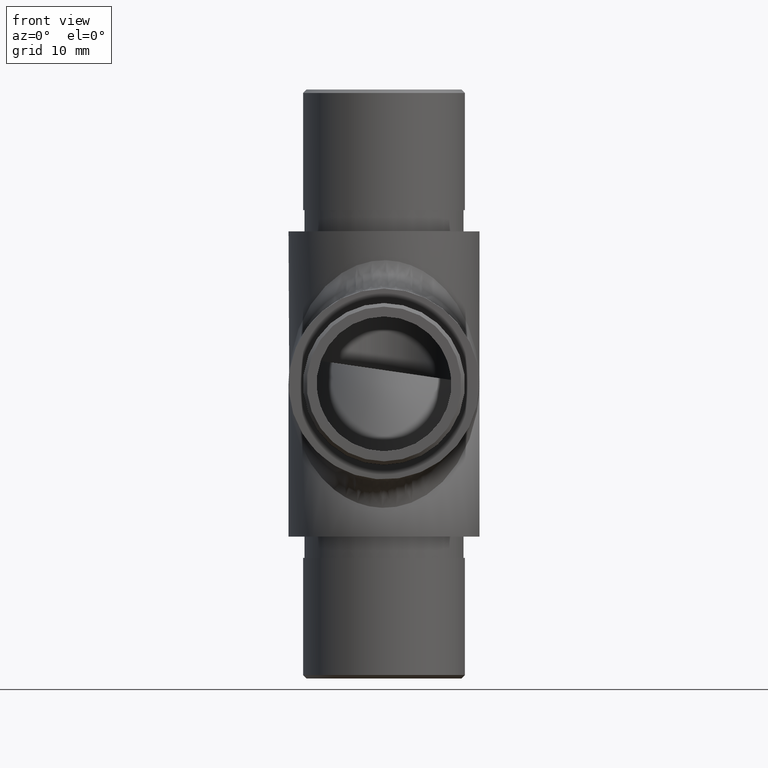
[diagram: clean part render]
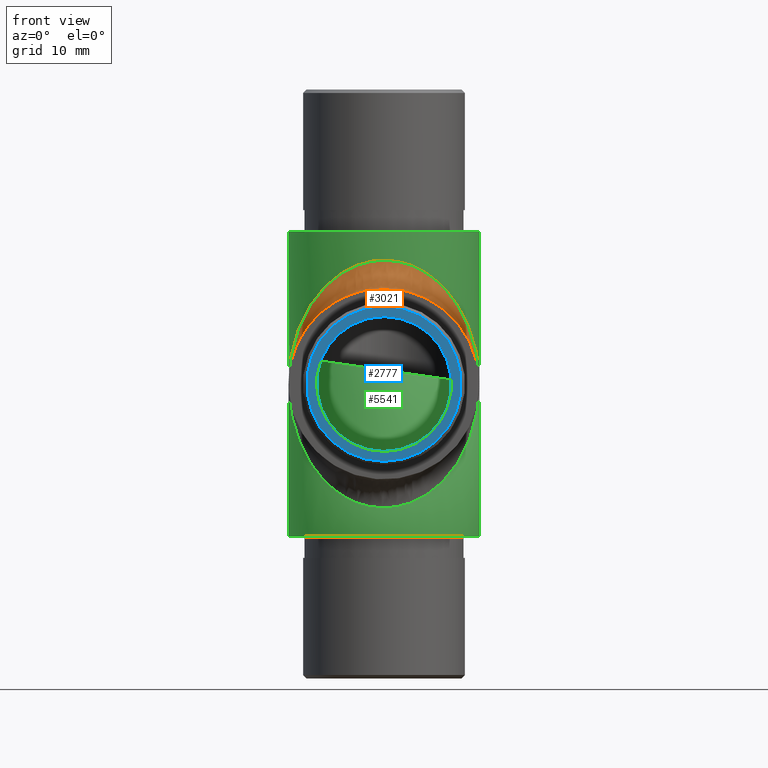
[diagram: same view with three faces highlighted in distinct colors, each labeled with its STEP entity id]
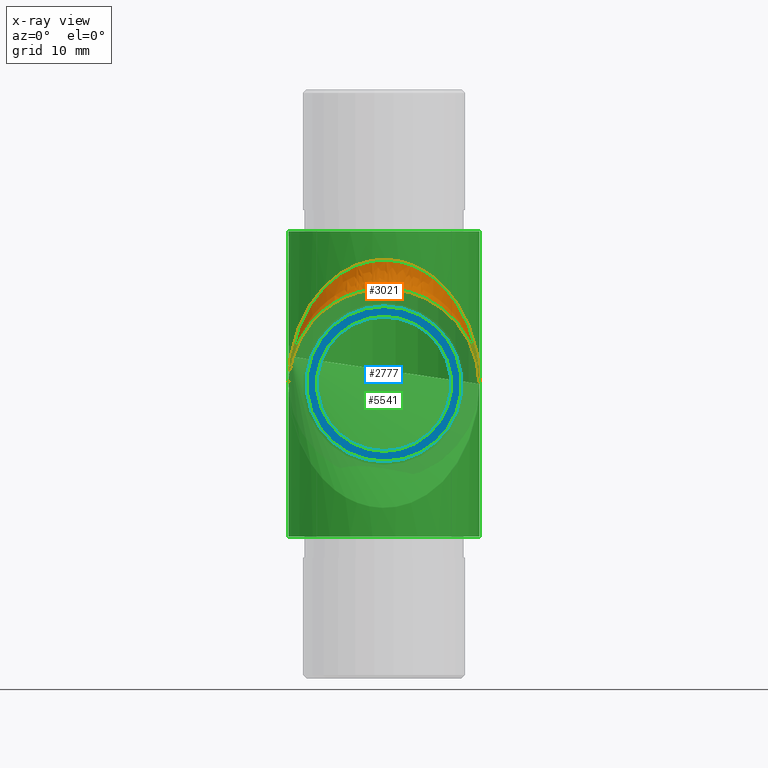
[diagram: x-ray of the same camera — body ghosted, the three highlighted faces saturated]
A machine part, front view with three faces highlighted in distinct colors.
The next image is the same camera in x-ray (body ghosted, the three faces saturated) — at least one of them is partly hidden behind the body in this view.
Their STEP definitions:

[orange] entity #3021 — the highlighted face is a freeform B-spline surface patch.
#104 = ORIENTED_EDGE ( 'NONE', *, *, #11539, .F. ) ;
#349 = CARTESIAN_POINT ( 'NONE',  ( 13.44999999999999800, 41.49999999999668900, -3.321756333069138900E-012 ) ) ;
#425 = FACE_OUTER_BOUND ( 'NONE', #6470, .T. ) ;
#560 = CARTESIAN_POINT ( 'NONE',  ( 12.76305610663450500, 35.87733676126273300, 4.333800605208373300 ) ) ;
#602 = CARTESIAN_POINT ( 'NONE',  ( 9.277602110787102100, 31.63565125913008900, 9.864348740862995500 ) ) ;
#638 = CARTESIAN_POINT ( 'NONE',  ( -7.054827041779410600, 29.92907421062020700, 11.57092578936716300 ) ) ;
#676 = CARTESIAN_POINT ( 'NONE',  ( -10.13305261838215000, 29.96857320206616700, 8.888119795535841300 ) ) ;
#734 = CARTESIAN_POINT ( 'NONE',  ( 8.888119795538621300, 28.35340013451340700, 10.13305261837963500 ) ) ;
#815 = CARTESIAN_POINT ( 'NONE',  ( -11.16885367848702300, 33.87956908818716100, 7.620430911803512500 ) ) ;
#1536 = CARTESIAN_POINT ( 'NONE',  ( 13.44999999999859600, 40.48879775430319900, 1.011202245686868600 ) ) ;
#1575 = CARTESIAN_POINT ( 'NONE',  ( 5.960383725262731900, 25.81536484023254000, 12.08930331798095300 ) ) ;
#1607 = CARTESIAN_POINT ( 'NONE',  ( 12.08930331792176300, 35.53961627458730300, 7.732988550808683700 ) ) ;
#1651 = CARTESIAN_POINT ( 'NONE',  ( -8.888119795538012000, 28.35340013451097400, 10.13305261838024200 ) ) ;
#1675 =( BOUNDED_SURFACE ( )  B_SPLINE_SURFACE ( 3, 2, ( 
 ( #4312, #349, #12407 ),
 ( #5449, #1536, #3292 ),
 ( #11258, #5312, #12281 ),
 ( #9306, #6312, #3335 ),
 ( #560, #6681, #11645 ),
 ( #8472, #8591, #1607 ),
 ( #5648, #1697, #7676 ),
 ( #4559, #11517, #10475 ),
 ( #9512, #602, #9650 ),
 ( #734, #2635, #8635 ),
 ( #7637, #5526, #10519 ),
 ( #8515, #5576, #10598 ),
 ( #1575, #3509, #2508 ),
 ( #12650, #8551, #12526 ),
 ( #7553, #2597, #12611 ),
 ( #9474, #9560, #2672 ),
 ( #6645, #3676, #4519 ),
 ( #6557, #3589, #11486 ),
 ( #3555, #10565, #10642 ),
 ( #12491, #9610, #4692 ),
 ( #5691, #6524, #4604 ),
 ( #2552, #11555, #4653 ),
 ( #5611, #7506, #12576 ),
 ( #6594, #638, #7597 ),
 ( #1651, #3627, #11598 ),
 ( #676, #10802, #9780 ),
 ( #8766, #4858, #7804 ),
 ( #11852, #815, #8856 ),
 ( #1855, #5815, #10760 ),
 ( #8814, #7765, #5774 ),
 ( #3841, #6853, #10689 ),
 ( #7843, #2800, #1814 ),
 ( #12780, #7726, #12742 ),
 ( #3714, #4732, #8724 ) ),
 .UNSPECIFIED., .F., .F., .F. ) 
 B_SPLINE_SURFACE_WITH_KNOTS ( ( 4, 2, 2, 2, 2, 2, 2, 2, 2, 2, 2, 2, 2, 2, 2, 2, 4 ),
 ( 3, 3 ),
 ( 1.570796326794681600, 1.767145867644070600, 1.963495408493459500, 2.159844949342848400, 2.356194490192237400, 2.552544031041626300, 2.748893571891015200, 2.945243112740404200, 3.141592653589793100, 3.337942194439182100, 3.534291735288571000, 3.730641276137959900, 3.926990816987348900, 4.123340357836737800, 4.319689898686126700, 4.516039439535515700, 4.712388980384904600 ),
 ( 0.0000000000000000000, 1.000000000000000000 ),
 .UNSPECIFIED. ) 
 GEOMETRIC_REPRESENTATION_ITEM ( )  RATIONAL_B_SPLINE_SURFACE ( (
 ( 1.000000000000000000, 1.000000000000000000, 1.000000000000000000),
 ( 1.000000000000000000, 1.000009746410285100, 1.000000000000000000),
 ( 1.000000000000000000, 0.9967613244612991700, 1.000000000000000000),
 ( 1.000000000000000000, 0.9841171504864370000, 1.000000000000000000),
 ( 1.000000000000000000, 0.9747108043652704700, 1.000000000000000000),
 ( 1.000000000000000000, 0.9506740353970285500, 1.000000000000000000),
 ( 1.000000000000000000, 0.9360421842735673300, 1.000000000000000000),
 ( 1.000000000000000000, 0.9031650994128057600, 1.000000000000000000),
 ( 1.000000000000000000, 0.8849191471366230100, 1.000000000000000000),
 ( 1.000000000000000000, 0.8471316604322284300, 1.000000000000000000),
 ( 1.000000000000000000, 0.8275942695996063600, 1.000000000000000000),
 ( 1.000000000000000000, 0.7902180086437122800, 1.000000000000000000),
 ( 1.000000000000000000, 0.7723968218215497800, 1.000000000000000000),
 ( 1.000000000000000000, 0.7418334178756402800, 1.000000000000000000),
 ( 1.000000000000000000, 0.7291288940217111000, 1.000000000000000000),
 ( 1.000000000000000000, 0.7117460025216018100, 1.000000000000000000),
 ( 1.000000000000000000, 0.7071067811865475700, 1.000000000000000000),
 ( 1.000000000000000000, 0.7071067811865475700, 1.000000000000000000),
 ( 1.000000000000000000, 0.7117460025214726900, 1.000000000000000000),
 ( 1.000000000000000000, 0.7291288940218402200, 1.000000000000000000),
 ( 1.000000000000000000, 0.7418334178755052700, 1.000000000000000000),
 ( 1.000000000000000000, 0.7723968218216863400, 1.000000000000000000),
 ( 1.000000000000000000, 0.7902180086438577200, 1.000000000000000000),
 ( 1.000000000000000000, 0.8275942695994618100, 1.000000000000000000),
 ( 1.000000000000000000, 0.8471316604323059200, 1.000000000000000000),
 ( 1.000000000000000000, 0.8849191471365452900, 1.000000000000000000),
 ( 1.000000000000000000, 0.9031650994127229400, 1.000000000000000000),
 ( 1.000000000000000000, 0.9360421842736508200, 1.000000000000000000),
 ( 1.000000000000000000, 0.9506740353970922800, 1.000000000000000000),
 ( 1.000000000000000000, 0.9747108043652074100, 1.000000000000000000),
 ( 1.000000000000000000, 0.9841171504862938900, 1.000000000000000000),
 ( 1.000000000000000000, 0.9967613244614425000, 1.000000000000000000),
 ( 1.000000000000000000, 1.000009746410177400, 1.000000000000000000),
 ( 1.000000000000000000, 1.000000000000000000, 1.000000000000000000) ) ) 
 REPRESENTATION_ITEM ( '' )  SURFACE ( )  );
#1697 = CARTESIAN_POINT ( 'NONE',  ( 11.16885367848489000, 33.87956908818459600, 7.620430911804794100 ) ) ;
#1814 = CARTESIAN_POINT ( 'NONE',  ( -13.36330011797406700, 39.73942088396597700, 2.284171418187720200 ) ) ;
#1855 = CARTESIAN_POINT ( 'NONE',  ( -12.08930331792120000, 33.76701144918603600, 5.960383725407477400 ) ) ;
#2207 =( BOUNDED_CURVE ( )  B_SPLINE_CURVE ( 3, ( #2652, #5665, #11662, #2690 ),
 .UNSPECIFIED., .F., .T. ) 
 B_SPLINE_CURVE_WITH_KNOTS ( ( 4, 4 ),
 ( 1.570796326794896600, 4.712388980384689700 ),
 .UNSPECIFIED. ) 
 CURVE ( )  GEOMETRIC_REPRESENTATION_ITEM ( )  RATIONAL_B_SPLINE_CURVE ( ( 1.000000000000000000, 0.3333333333333333700, 0.3333333333333333700, 1.000000000000000000 ) ) 
 REPRESENTATION_ITEM ( '' )  );
#2508 = CARTESIAN_POINT ( 'NONE',  ( 5.960383725262566700, 29.41069668201132700, 15.68463515975996200 ) ) ;
#2552 = CARTESIAN_POINT ( 'NONE',  ( -5.960383725262022200, 25.81536484023256500, 12.08930331798124100 ) ) ;
#2597 = CARTESIAN_POINT ( 'NONE',  ( 2.554661403383726700, 28.24603728105214600, 13.25396271894142300 ) ) ;
#2635 = CARTESIAN_POINT ( 'NONE',  ( 7.826289490384745300, 30.43128300449903300, 11.06871699549405500 ) ) ;
#2652 = CARTESIAN_POINT ( 'NONE',  ( -13.45000000000000100, 41.49999999999250400, 0.0000000000000000000 ) ) ;
#2672 = CARTESIAN_POINT ( 'NONE',  ( 1.760579116241725000, 28.13669988206150300, 17.33751576638654500 ) ) ;
#2690 = CARTESIAN_POINT ( 'NONE',  ( 13.45000000000000100, 41.49999999999250400, 0.0000000000000000000 ) ) ;
#2770 = CARTESIAN_POINT ( 'NONE',  ( 13.44999999999999400, 6.599999999994062200, 26.90000000000000900 ) ) ;
#2800 = CARTESIAN_POINT ( 'NONE',  ( -13.33585166001099300, 39.47138319865461400, 2.028616801329067100 ) ) ;
#2892 = CARTESIAN_POINT ( 'NONE',  ( -13.44999999999999000, 6.599999999994062200, 26.90000000000000900 ) ) ;
#3021 = ADVANCED_FACE ( 'NONE', ( #425 ), #1675, .F. ) ;
#3292 = CARTESIAN_POINT ( 'NONE',  ( 13.44999999999980700, 40.61968957274084600, 1.142112784777824500 ) ) ;
#3335 = CARTESIAN_POINT ( 'NONE',  ( 13.01982392487252900, 38.01264945378368800, 4.524480820168901300 ) ) ;
#3509 = CARTESIAN_POINT ( 'NONE',  ( 4.733780939930510600, 28.81696160274548300, 12.68303839724620200 ) ) ;
#3555 = CARTESIAN_POINT ( 'NONE',  ( -1.760579116241818100, 24.16248423360797700, 13.36330011793105800 ) ) ;
#3589 = CARTESIAN_POINT ( 'NONE',  ( -0.6185010550566775200, 28.04999999999250400, 13.44999999999999800 ) ) ;
#3627 = CARTESIAN_POINT ( 'NONE',  ( -7.826289490383564900, 30.43128300449907200, 11.06871699549399900 ) ) ;
#3676 = CARTESIAN_POINT ( 'NONE',  ( 0.6185010550566798500, 28.04999999999250400, 13.44999999999999800 ) ) ;
#3714 = CARTESIAN_POINT ( 'NONE',  ( -13.44999999999999800, 41.49999999999624800, -2.888461213364656900E-012 ) ) ;
#3841 = CARTESIAN_POINT ( 'NONE',  ( -13.01982392487378000, 36.97551917982450200, 3.487350546204431200 ) ) ;
#3860 = CARTESIAN_POINT ( 'NONE',  ( 13.45000000000000100, 41.49999999999250400, 0.0000000000000000000 ) ) ;
#4312 = CARTESIAN_POINT ( 'NONE',  ( 13.44999999999999800, 41.49999999999625500, -2.891755513254363700E-012 ) ) ;
#4519 = CARTESIAN_POINT ( 'NONE',  ( 0.8803004409930499400, 28.04999999999250400, 17.44999999999999600 ) ) ;
#4559 = CARTESIAN_POINT ( 'NONE',  ( 10.69419756423101800, 30.85567813185696600, 8.204362700658407400 ) ) ;
#4604 = CARTESIAN_POINT ( 'NONE',  ( -4.333800605360895700, 28.73694389342112400, 16.55876052488322600 ) ) ;
#4653 = CARTESIAN_POINT ( 'NONE',  ( -5.960383725262608400, 29.41069668201134500, 15.68463515975993700 ) ) ;
#4692 = CARTESIAN_POINT ( 'NONE',  ( -3.487350545993346300, 28.48017607507685200, 16.89189051968803000 ) ) ;
#4706 = VERTEX_POINT ( 'NONE', #11125 ) ;
#4732 = CARTESIAN_POINT ( 'NONE',  ( -13.44999999999999800, 41.49999999999668200, -3.317972174459773400E-012 ) ) ;
#4817 = ORIENTED_EDGE ( 'NONE', *, *, #9444, .F. ) ;
#4858 = CARTESIAN_POINT ( 'NONE',  ( -9.962209205124512600, 32.33118331529735200, 9.168816684698477100 ) ) ;
#5312 = CARTESIAN_POINT ( 'NONE',  ( 13.33585166000806900, 39.47138319866555600, 2.028616801328466200 ) ) ;
#5449 = CARTESIAN_POINT ( 'NONE',  ( 13.45000000000018600, 40.35788721520159300, 0.8803104272370246800 ) ) ;
#5526 = CARTESIAN_POINT ( 'NONE',  ( 7.054827041784241400, 29.92907421062676600, 11.57092578937167100 ) ) ;
#5576 = CARTESIAN_POINT ( 'NONE',  ( 5.506249729539828100, 29.11675223912397900, 12.38324776086312400 ) ) ;
#5611 = CARTESIAN_POINT ( 'NONE',  ( -6.740476567638261000, 26.35633859729846800, 11.67233500666131700 ) ) ;
#5648 = CARTESIAN_POINT ( 'NONE',  ( 11.67233500670943700, 32.75492073574780200, 6.740476567565897500 ) ) ;
#5665 = CARTESIAN_POINT ( 'NONE',  ( -13.44999999999999900, 14.59999999999250000, 34.89999999999998400 ) ) ;
#5691 = CARTESIAN_POINT ( 'NONE',  ( -4.333800605360266000, 24.94123947510927400, 12.76305610657179600 ) ) ;
#5774 = CARTESIAN_POINT ( 'NONE',  ( -12.76305610663505500, 37.16619939478454900, 5.622663238729241000 ) ) ;
#5815 = CARTESIAN_POINT ( 'NONE',  ( -11.70026303290132200, 34.73253009090994700, 6.767469909084724100 ) ) ;
#6312 = CARTESIAN_POINT ( 'NONE',  ( 12.89222839911591700, 37.50289924575110200, 3.997100754241550600 ) ) ;
#6470 = EDGE_LOOP ( 'NONE', ( #4817, #104 ) ) ;
#6524 = CARTESIAN_POINT ( 'NONE',  ( -3.251151502455407200, 28.37768468058094100, 13.12231531940744300 ) ) ;
#6557 = CARTESIAN_POINT ( 'NONE',  ( -0.8803004409929341400, 24.04999999999250400, 13.44999999999999800 ) ) ;
#6594 = CARTESIAN_POINT ( 'NONE',  ( -8.204362700590856200, 27.62537193332929100, 10.69419756427592600 ) ) ;
#6645 = CARTESIAN_POINT ( 'NONE',  ( 0.8803004409929373600, 24.04999999999250400, 13.44999999999999800 ) ) ;
#6681 = CARTESIAN_POINT ( 'NONE',  ( 12.55744004399948100, 36.54091678937136600, 4.959083210617943200 ) ) ;
#6725 = CARTESIAN_POINT ( 'NONE',  ( 13.45000000000000100, 41.49999999999250400, 0.0000000000000000000 ) ) ;
#6853 = CARTESIAN_POINT ( 'NONE',  ( -12.89222839911292000, 37.50289924576191700, 3.997100754241184300 ) ) ;
#7506 = CARTESIAN_POINT ( 'NONE',  ( -5.506249729545214000, 29.11675223913102800, 12.38324776086768300 ) ) ;
#7553 = CARTESIAN_POINT ( 'NONE',  ( 3.487350545992933300, 24.60810948030648900, 13.01982392491565800 ) ) ;
#7597 = CARTESIAN_POINT ( 'NONE',  ( -8.204362700591245200, 30.80580243571658300, 13.87462806666320800 ) ) ;
#7637 = CARTESIAN_POINT ( 'NONE',  ( 8.204362700591621800, 27.62537193332927300, 10.69419756427541800 ) ) ;
#7676 = CARTESIAN_POINT ( 'NONE',  ( 11.67233500670811200, 34.75952343242405400, 8.745079264240832400 ) ) ;
#7726 = CARTESIAN_POINT ( 'NONE',  ( -13.44999999999859600, 40.48879775431578300, 1.011202245691079400 ) ) ;
#7765 = CARTESIAN_POINT ( 'NONE',  ( -12.55744004400127900, 36.54091678937204800, 4.959083210619911400 ) ) ;
#7804 = CARTESIAN_POINT ( 'NONE',  ( -10.69419756423298700, 33.29563729933760600, 10.64432186814122400 ) ) ;
#7843 = CARTESIAN_POINT ( 'NONE',  ( -13.36330011797410200, 39.21582858180408200, 1.760579116024438000 ) ) ;
#8472 = CARTESIAN_POINT ( 'NONE',  ( 12.08930331792076100, 33.76701144918584400, 5.960383725408529900 ) ) ;
#8515 = CARTESIAN_POINT ( 'NONE',  ( 6.740476567637457200, 26.35633859729845000, 11.67233500666185200 ) ) ;
#8551 = CARTESIAN_POINT ( 'NONE',  ( 3.251151502457130700, 28.37768468058313700, 13.12231531941066700 ) ) ;
#8591 = CARTESIAN_POINT ( 'NONE',  ( 11.70026303290309100, 34.73253009091049400, 6.767469909086903700 ) ) ;
#8635 = CARTESIAN_POINT ( 'NONE',  ( 8.888119795539900300, 31.36694738161452300, 13.14659986548031000 ) ) ;
#8724 = CARTESIAN_POINT ( 'NONE',  ( -13.44999999999999800, 41.49999999999710800, -3.747483135554889500E-012 ) ) ;
#8737 =( BOUNDED_CURVE ( )  B_SPLINE_CURVE ( 3, ( #6725, #2770, #2892, #10649 ),
 .UNSPECIFIED., .F., .F. ) 
 B_SPLINE_CURVE_WITH_KNOTS ( ( 4, 4 ),
 ( 1.570796326794896800, 4.712388980384689700 ),
 .UNSPECIFIED. ) 
 CURVE ( )  GEOMETRIC_REPRESENTATION_ITEM ( )  RATIONAL_B_SPLINE_CURVE ( ( 1.000000000000000000, 0.3333333333333333700, 0.3333333333333333700, 1.000000000000000000 ) ) 
 REPRESENTATION_ITEM ( '' )  );
#8766 = CARTESIAN_POINT ( 'NONE',  ( -10.69419756423096500, 30.85567813185256700, 8.204362700658489200 ) ) ;
#8814 = CARTESIAN_POINT ( 'NONE',  ( -12.76305610663408500, 35.87733676126259000, 4.333800605209387600 ) ) ;
#8856 = CARTESIAN_POINT ( 'NONE',  ( -11.67233500670908000, 34.75952343242550300, 8.745079264238970800 ) ) ;
#9306 = CARTESIAN_POINT ( 'NONE',  ( 13.01982392487375700, 36.97551917981839200, 3.487350546204532900 ) ) ;
#9444 = EDGE_CURVE ( 'NONE', #4706, #9543, #2207, .T. ) ;
#9474 = CARTESIAN_POINT ( 'NONE',  ( 1.760579116241604000, 24.16248423360595500, 13.36330011793109700 ) ) ;
#9512 = CARTESIAN_POINT ( 'NONE',  ( 10.13305261838154400, 29.96857320206374500, 8.888119795536443500 ) ) ;
#9543 = VERTEX_POINT ( 'NONE', #3860 ) ;
#9560 = CARTESIAN_POINT ( 'NONE',  ( 1.231024211894390800, 28.08116757911519600, 13.41883242087635600 ) ) ;
#9610 = CARTESIAN_POINT ( 'NONE',  ( -2.554661403384747200, 28.24603728105012500, 13.25396271894342500 ) ) ;
#9650 = CARTESIAN_POINT ( 'NONE',  ( 10.13305261838198700, 32.61188020445612800, 11.53142679792754200 ) ) ;
#9780 = CARTESIAN_POINT ( 'NONE',  ( -10.13305261838198500, 32.61188020445611400, 11.53142679792633300 ) ) ;
#10475 = CARTESIAN_POINT ( 'NONE',  ( 10.69419756423393000, 33.29563729933901300, 10.64432186813940400 ) ) ;
#10519 = CARTESIAN_POINT ( 'NONE',  ( 8.204362700591618200, 30.80580243571682800, 13.87462806666209200 ) ) ;
#10565 = CARTESIAN_POINT ( 'NONE',  ( -1.231024211893133800, 28.08116757911722100, 13.41883242087432000 ) ) ;
#10598 = CARTESIAN_POINT ( 'NONE',  ( 6.740476567639050600, 29.82766499333196500, 15.14366140269518500 ) ) ;
#10642 = CARTESIAN_POINT ( 'NONE',  ( -1.760579116241890000, 28.13669988206152800, 17.33751576638452400 ) ) ;
#10649 = CARTESIAN_POINT ( 'NONE',  ( -13.45000000000000100, 41.49999999999250400, 0.0000000000000000000 ) ) ;
#10689 = CARTESIAN_POINT ( 'NONE',  ( -13.01982392487447600, 38.01264945379346500, 4.524480820168693500 ) ) ;
#10760 = CARTESIAN_POINT ( 'NONE',  ( -12.08930331792144300, 35.53961627458652800, 7.732988550807139200 ) ) ;
#10802 = CARTESIAN_POINT ( 'NONE',  ( -9.277602110788350800, 31.63565125913012800, 9.864348740862944000 ) ) ;
#11125 = CARTESIAN_POINT ( 'NONE',  ( -13.45000000000000100, 41.49999999999250400, 0.0000000000000000000 ) ) ;
#11258 = CARTESIAN_POINT ( 'NONE',  ( 13.36330011797411500, 39.21582858181013600, 1.760579116024375300 ) ) ;
#11486 = CARTESIAN_POINT ( 'NONE',  ( -0.8803004409930466100, 28.04999999999250400, 17.44999999999999600 ) ) ;
#11517 = CARTESIAN_POINT ( 'NONE',  ( 9.962209205126809400, 32.33118331530010200, 9.168816684697034700 ) ) ;
#11539 = EDGE_CURVE ( 'NONE', #9543, #4706, #8737, .T. ) ;
#11555 = CARTESIAN_POINT ( 'NONE',  ( -4.733780939931981500, 28.81696160274753600, 12.68303839724934400 ) ) ;
#11598 = CARTESIAN_POINT ( 'NONE',  ( -8.888119795539898500, 31.36694738161452300, 13.14659986548152500 ) ) ;
#11645 = CARTESIAN_POINT ( 'NONE',  ( 12.76305610663472100, 37.16619939478373900, 5.622663238727747100 ) ) ;
#11662 = CARTESIAN_POINT ( 'NONE',  ( 13.44999999999999400, 14.59999999999250000, 34.89999999999998400 ) ) ;
#11852 = CARTESIAN_POINT ( 'NONE',  ( -11.67233500670951200, 32.75492073575224300, 6.740476567565783800 ) ) ;
#12281 = CARTESIAN_POINT ( 'NONE',  ( 13.36330011797600300, 39.73942088397571100, 2.284171418187563400 ) ) ;
#12407 = CARTESIAN_POINT ( 'NONE',  ( 13.44999999999999800, 41.49999999999711500, -3.751757152883914000E-012 ) ) ;
#12491 = CARTESIAN_POINT ( 'NONE',  ( -3.487350545992760100, 24.60810948030447400, 13.01982392491569100 ) ) ;
#12526 = CARTESIAN_POINT ( 'NONE',  ( 4.333800605360854000, 28.73694389342110600, 16.55876052488325100 ) ) ;
#12576 = CARTESIAN_POINT ( 'NONE',  ( -6.740476567639461800, 29.82766499333223800, 15.14366140269403600 ) ) ;
#12611 = CARTESIAN_POINT ( 'NONE',  ( 3.487350545993469700, 28.48017607507687600, 16.89189051968601200 ) ) ;
#12650 = CARTESIAN_POINT ( 'NONE',  ( 4.333800605359472900, 24.94123947510925300, 12.76305610657212400 ) ) ;
#12742 = CARTESIAN_POINT ( 'NONE',  ( -13.44999999999980700, 40.61968957275421800, 1.142112784782288100 ) ) ;
#12780 = CARTESIAN_POINT ( 'NONE',  ( -13.45000000000018600, 40.35788721521078100, 0.8803104272429027600 ) ) ;

[blue] entity #2777 — the highlighted planar face has unit normal (0, -1, 0).
#591 = CARTESIAN_POINT ( 'NONE',  ( 0.0000000000000000000, 0.0000000000000000000, -10.90000000000000600 ) ) ;
#870 = DIRECTION ( 'NONE',  ( 0.0000000000000000000, -1.000000000000000000, 0.0000000000000000000 ) ) ;
#1901 = CARTESIAN_POINT ( 'NONE',  ( 0.0000000000000000000, 0.0000000000000000000, 0.0000000000000000000 ) ) ;
#2777 = ADVANCED_FACE ( 'NONE', ( #5856, #9435 ), #4796, .T. ) ;
#2914 = ORIENTED_EDGE ( 'NONE', *, *, #11537, .T. ) ;
#3492 = CARTESIAN_POINT ( 'NONE',  ( 0.0000000000000000000, 0.0000000000000000000, -9.500000000000000000 ) ) ;
#3874 = CARTESIAN_POINT ( 'NONE',  ( 0.0000000000000000000, 0.0000000000000000000, 0.0000000000000000000 ) ) ;
#4564 = EDGE_LOOP ( 'NONE', ( #11902 ) ) ;
#4796 = PLANE ( 'NONE',  #9375 ) ;
#4863 = DIRECTION ( 'NONE',  ( 0.0000000000000000000, 0.0000000000000000000, -1.000000000000000000 ) ) ;
#5545 = CIRCLE ( 'NONE', #8036, 10.90000000000000600 ) ;
#5750 = DIRECTION ( 'NONE',  ( 0.0000000000000000000, -1.000000000000000000, 0.0000000000000000000 ) ) ;
#5766 = DIRECTION ( 'NONE',  ( 0.0000000000000000000, 0.0000000000000000000, -1.000000000000000000 ) ) ;
#5856 = FACE_OUTER_BOUND ( 'NONE', #6961, .T. ) ;
#6961 = EDGE_LOOP ( 'NONE', ( #2914 ) ) ;
#8036 = AXIS2_PLACEMENT_3D ( 'NONE', #1901, #5750, #4863 ) ;
#8146 = VERTEX_POINT ( 'NONE', #3492 ) ;
#9375 = AXIS2_PLACEMENT_3D ( 'NONE', #11741, #870, #10906 ) ;
#9435 = FACE_BOUND ( 'NONE', #4564, .T. ) ;
#9712 = VERTEX_POINT ( 'NONE', #591 ) ;
#9795 = AXIS2_PLACEMENT_3D ( 'NONE', #3874, #11716, #5766 ) ;
#10349 = CIRCLE ( 'NONE', #9795, 9.500000000000000000 ) ;
#10906 = DIRECTION ( 'NONE',  ( 0.0000000000000000000, -0.0000000000000000000, -1.000000000000000000 ) ) ;
#11537 = EDGE_CURVE ( 'NONE', #9712, #9712, #5545, .T. ) ;
#11716 = DIRECTION ( 'NONE',  ( 0.0000000000000000000, -1.000000000000000000, 0.0000000000000000000 ) ) ;
#11741 = CARTESIAN_POINT ( 'NONE',  ( 0.0000000000000000000, 0.0000000000000000000, 0.0000000000000000000 ) ) ;
#11902 = ORIENTED_EDGE ( 'NONE', *, *, #12037, .F. ) ;
#12037 = EDGE_CURVE ( 'NONE', #8146, #8146, #10349, .T. ) ;

[green] entity #5541 — the highlighted cylindrical surface (bore or boss wall) has radius 13.45 mm, axis along (-0, -0, -1).
#356 = DIRECTION ( 'NONE',  ( 0.0000000000000000000, 0.0000000000000000000, 1.000000000000000000 ) ) ;
#532 = EDGE_CURVE ( 'NONE', #9543, #4706, #10674, .T. ) ;
#1475 = CARTESIAN_POINT ( 'NONE',  ( 13.45000000000000100, 41.50000000000000000, 21.50000000000000000 ) ) ;
#1487 = EDGE_LOOP ( 'NONE', ( #12230 ) ) ;
#2207 =( BOUNDED_CURVE ( )  B_SPLINE_CURVE ( 3, ( #2652, #5665, #11662, #2690 ),
 .UNSPECIFIED., .F., .T. ) 
 B_SPLINE_CURVE_WITH_KNOTS ( ( 4, 4 ),
 ( 1.570796326794896600, 4.712388980384689700 ),
 .UNSPECIFIED. ) 
 CURVE ( )  GEOMETRIC_REPRESENTATION_ITEM ( )  RATIONAL_B_SPLINE_CURVE ( ( 1.000000000000000000, 0.3333333333333333700, 0.3333333333333333700, 1.000000000000000000 ) ) 
 REPRESENTATION_ITEM ( '' )  );
#2399 = VERTEX_POINT ( 'NONE', #8459 ) ;
#2400 = CARTESIAN_POINT ( 'NONE',  ( -13.45000000000000100, 41.49999999999250400, 0.0000000000000000000 ) ) ;
#2487 = CARTESIAN_POINT ( 'NONE',  ( -13.44999999999999600, 14.59999999999250000, -34.89999999999998400 ) ) ;
#2652 = CARTESIAN_POINT ( 'NONE',  ( -13.45000000000000100, 41.49999999999250400, 0.0000000000000000000 ) ) ;
#2690 = CARTESIAN_POINT ( 'NONE',  ( 13.45000000000000100, 41.49999999999250400, 0.0000000000000000000 ) ) ;
#3306 = ORIENTED_EDGE ( 'NONE', *, *, #532, .T. ) ;
#3860 = CARTESIAN_POINT ( 'NONE',  ( 13.45000000000000100, 41.49999999999250400, 0.0000000000000000000 ) ) ;
#3916 = EDGE_CURVE ( 'NONE', #5194, #5194, #5243, .T. ) ;
#4169 = DIRECTION ( 'NONE',  ( 0.0000000000000000000, 0.0000000000000000000, 1.000000000000000000 ) ) ;
#4493 = EDGE_LOOP ( 'NONE', ( #6125, #3306 ) ) ;
#4619 = AXIS2_PLACEMENT_3D ( 'NONE', #10136, #4169, #8081 ) ;
#4706 = VERTEX_POINT ( 'NONE', #11125 ) ;
#5194 = VERTEX_POINT ( 'NONE', #1475 ) ;
#5238 = CARTESIAN_POINT ( 'NONE',  ( 0.0000000000000000000, 41.50000000000000000, 21.50000000000000000 ) ) ;
#5243 = CIRCLE ( 'NONE', #6140, 13.45000000000000100 ) ;
#5529 = CYLINDRICAL_SURFACE ( 'NONE', #8315, 13.45000000000000100 ) ;
#5541 = ADVANCED_FACE ( 'NONE', ( #11745, #10800, #8162 ), #5529, .T. ) ;
#5665 = CARTESIAN_POINT ( 'NONE',  ( -13.44999999999999900, 14.59999999999250000, 34.89999999999998400 ) ) ;
#6125 = ORIENTED_EDGE ( 'NONE', *, *, #9444, .T. ) ;
#6140 = AXIS2_PLACEMENT_3D ( 'NONE', #11225, #356, #6366 ) ;
#6366 = DIRECTION ( 'NONE',  ( 1.000000000000000000, 0.0000000000000000000, 0.0000000000000000000 ) ) ;
#6374 = DIRECTION ( 'NONE',  ( -0.0000000000000000000, -0.0000000000000000000, -1.000000000000000000 ) ) ;
#6719 = CIRCLE ( 'NONE', #4619, 13.45000000000000100 ) ;
#7132 = EDGE_LOOP ( 'NONE', ( #10483 ) ) ;
#8081 = DIRECTION ( 'NONE',  ( 1.000000000000000000, 0.0000000000000000000, 0.0000000000000000000 ) ) ;
#8162 = FACE_BOUND ( 'NONE', #4493, .T. ) ;
#8315 = AXIS2_PLACEMENT_3D ( 'NONE', #5238, #6374, #11330 ) ;
#8370 = CARTESIAN_POINT ( 'NONE',  ( 13.45000000000000100, 41.49999999999250400, 0.0000000000000000000 ) ) ;
#8459 = CARTESIAN_POINT ( 'NONE',  ( 13.45000000000000100, 41.50000000000000000, -21.50000000000000000 ) ) ;
#8598 = EDGE_CURVE ( 'NONE', #2399, #2399, #6719, .T. ) ;
#9444 = EDGE_CURVE ( 'NONE', #4706, #9543, #2207, .T. ) ;
#9543 = VERTEX_POINT ( 'NONE', #3860 ) ;
#10136 = CARTESIAN_POINT ( 'NONE',  ( 0.0000000000000000000, 41.50000000000000000, -21.50000000000000000 ) ) ;
#10483 = ORIENTED_EDGE ( 'NONE', *, *, #8598, .T. ) ;
#10489 = CARTESIAN_POINT ( 'NONE',  ( 13.45000000000000500, 14.59999999999250000, -34.89999999999998400 ) ) ;
#10674 =( BOUNDED_CURVE ( )  B_SPLINE_CURVE ( 3, ( #8370, #10489, #2487, #2400 ),
 .UNSPECIFIED., .F., .T. ) 
 B_SPLINE_CURVE_WITH_KNOTS ( ( 4, 4 ),
 ( 4.712388980384689700, 7.853981633974482800 ),
 .UNSPECIFIED. ) 
 CURVE ( )  GEOMETRIC_REPRESENTATION_ITEM ( )  RATIONAL_B_SPLINE_CURVE ( ( 1.000000000000000000, 0.3333333333333333700, 0.3333333333333333700, 1.000000000000000000 ) ) 
 REPRESENTATION_ITEM ( '' )  );
#10800 = FACE_OUTER_BOUND ( 'NONE', #1487, .T. ) ;
#11125 = CARTESIAN_POINT ( 'NONE',  ( -13.45000000000000100, 41.49999999999250400, 0.0000000000000000000 ) ) ;
#11225 = CARTESIAN_POINT ( 'NONE',  ( 0.0000000000000000000, 41.50000000000000000, 21.50000000000000000 ) ) ;
#11330 = DIRECTION ( 'NONE',  ( -1.000000000000000000, 0.0000000000000000000, 0.0000000000000000000 ) ) ;
#11662 = CARTESIAN_POINT ( 'NONE',  ( 13.44999999999999400, 14.59999999999250000, 34.89999999999998400 ) ) ;
#11745 = FACE_OUTER_BOUND ( 'NONE', #7132, .T. ) ;
#12230 = ORIENTED_EDGE ( 'NONE', *, *, #3916, .F. ) ;